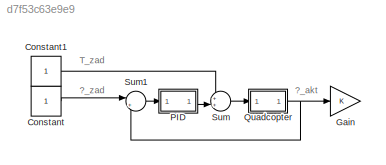
MODEL slx_d7f53c63e9e9
KIND model
BLOCK [Constant] Constant
BLOCK [Constant] Constant1
BLOCK [Gain] Gain
  OutDataTypeStr = Inherit: Inherit via internal rule
  ParamDataTypeStr = Inherit: Inherit via internal rule
  SaturateOnIntegerOverflow = off
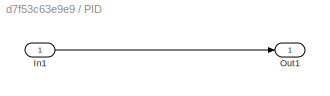
BLOCK [SubSystem] PID
  FunctionWithSeparateData = off
  MaskHideContents = off
  MinAlgLoopOccurrences = off
  Opaque = off
  Ports = [1, 1]
  PropExecContextOutsideSubsystem = off
  RTWSystemCode = Auto
  RequestExecContextInheritance = off
  ShowPortLabels = none
BLOCK [Inport] PID/In1
  IconDisplay = Port number
BLOCK [Outport] PID/Out1
  IconDisplay = Port number
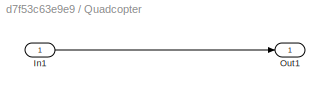
BLOCK [SubSystem] Quadcopter
  FunctionWithSeparateData = off
  MaskHideContents = off
  MinAlgLoopOccurrences = off
  Opaque = off
  Ports = [1, 1]
  PropExecContextOutsideSubsystem = off
  RTWSystemCode = Auto
  RequestExecContextInheritance = off
  ShowPortLabels = none
BLOCK [Inport] Quadcopter/In1
  IconDisplay = Port number
BLOCK [Outport] Quadcopter/Out1
  IconDisplay = Port number
BLOCK [Sum] Sum
  IconShape = round
  InputSameDT = off
  Inputs = ++|
  OutDataTypeStr = Inherit: Inherit via internal rule
  Ports = [2, 1]
  SaturateOnIntegerOverflow = off
BLOCK [Sum] Sum1
  IconShape = round
  InputSameDT = off
  Inputs = |+-
  OutDataTypeStr = Inherit: Inherit via internal rule
  Ports = [2, 1]
  SaturateOnIntegerOverflow = off
ANNOTATION (root): ?_akt
ANNOTATION (root): ?_zad
ANNOTATION (root): T_zad
LINE Constant1:1 -> Sum:1
LINE Constant:1 -> Sum1:1
LINE PID/In1:1 -> PID/Out1:1
LINE PID:1 -> Sum:2
LINE Quadcopter/In1:1 -> Quadcopter/Out1:1
NET Quadcopter:1 -> Gain:1, Sum1:2
LINE Sum1:1 -> PID:1
LINE Sum:1 -> Quadcopter:1
note: NET lines group one-source signal fan-out (src -> all destinations, sorted); 1:1 wires keep LINE
